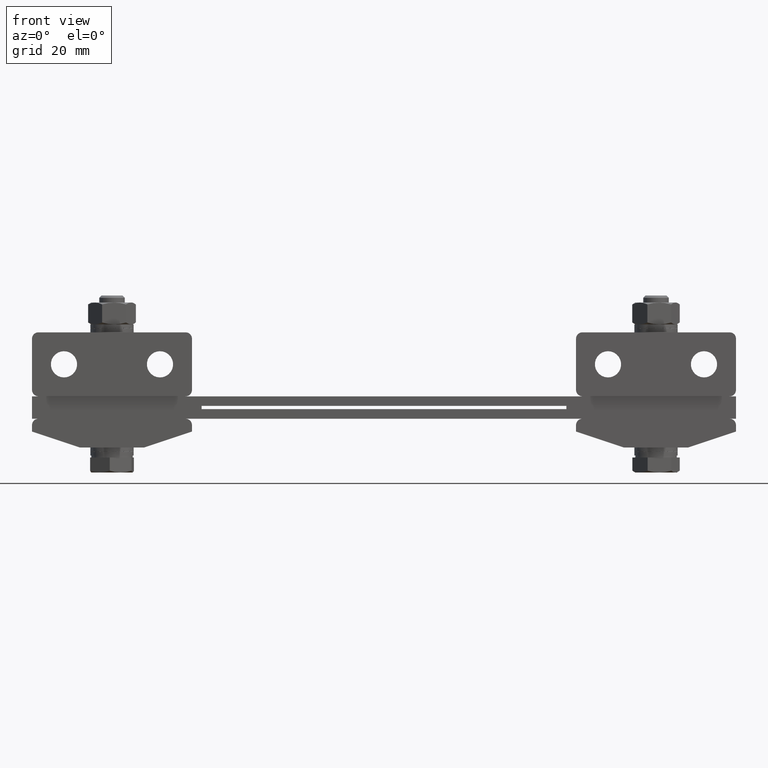
[diagram: clean part render]
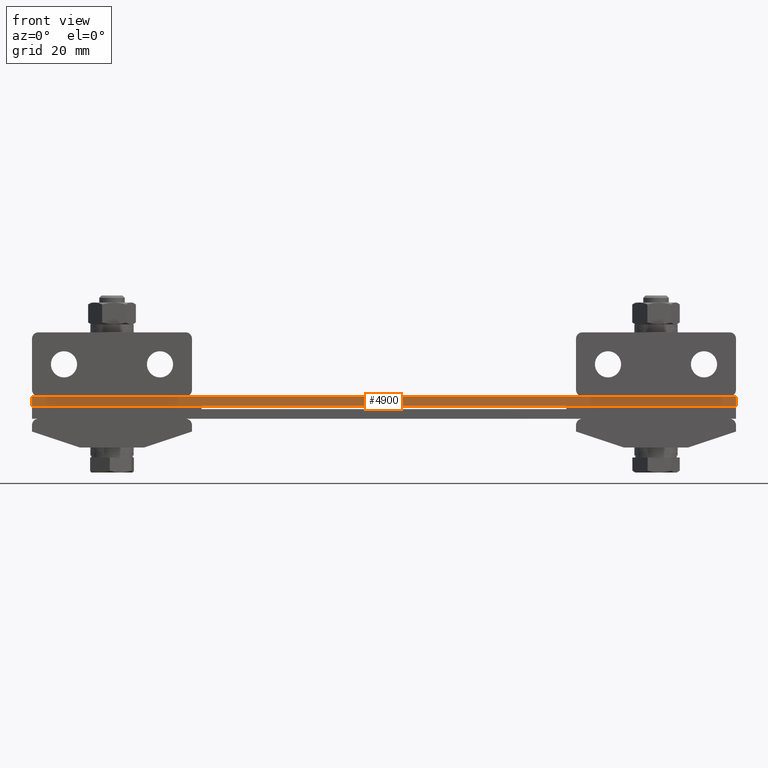
[diagram: same view with one face highlighted and labeled with its STEP entity id]
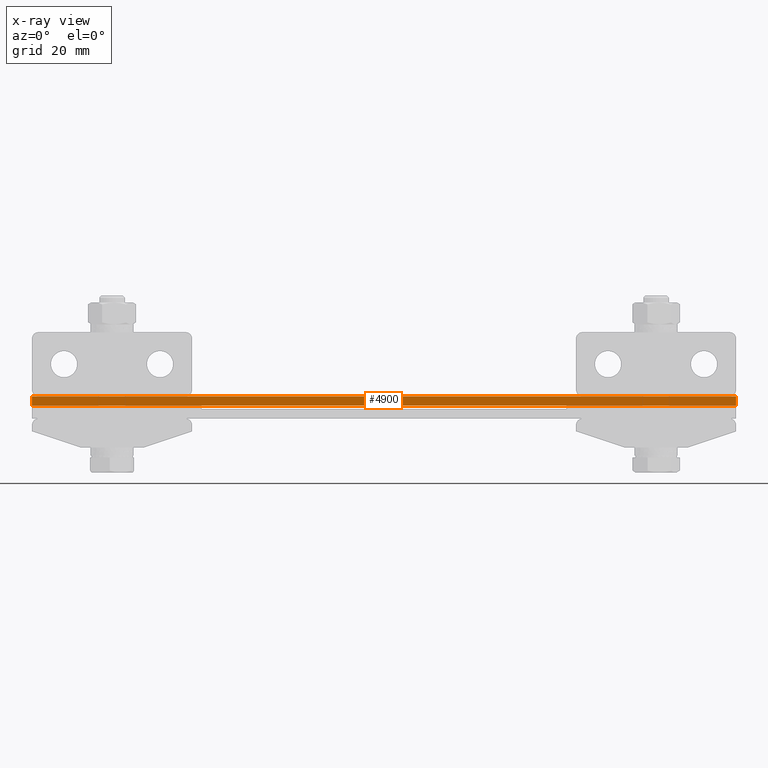
[diagram: x-ray of the same camera — body ghosted, the highlighted face saturated]
A machine part, front view. The second image highlights one B-rep face of the part: STEP entity #4900.
The next image is the same camera in x-ray: the body ghosted, the highlighted face saturated — about 0% of this face is hidden behind the body in this view.
In plain terms, the highlighted planar face has unit normal (0, 1, 0).
Its self-contained STEP definition (entity closure, byte-faithful):
#378 = CARTESIAN_POINT ( 'NONE',  ( -110.0000000000000000, -12.50000000000000000, 7.000000000000000000 ) ) ;
#1448 = VECTOR ( 'NONE', #14807, 1000.000000000000000 ) ;
#3087 = DIRECTION ( 'NONE',  ( 0.0000000000000000000, 0.0000000000000000000, -1.000000000000000000 ) ) ;
#4900 = ADVANCED_FACE ( 'NONE', ( #8577 ), #18019, .F. ) ;
#6222 = VECTOR ( 'NONE', #7387, 1000.000000000000000 ) ;
#6727 = EDGE_CURVE ( 'NONE', #7141, #18213, #15309, .T. ) ;
#7141 = VERTEX_POINT ( 'NONE', #9004 ) ;
#7336 = EDGE_CURVE ( 'NONE', #18020, #11167, #8570, .T. ) ;
#7387 = DIRECTION ( 'NONE',  ( 0.0000000000000000000, 0.0000000000000000000, -1.000000000000000000 ) ) ;
#7391 = EDGE_CURVE ( 'NONE', #11167, #18213, #13841, .T. ) ;
#8271 = CARTESIAN_POINT ( 'NONE',  ( -110.0000000000000000, -12.50000000000000000, 4.000000000000000000 ) ) ;
#8570 = LINE ( 'NONE', #14468, #10099 ) ;
#8577 = FACE_OUTER_BOUND ( 'NONE', #12637, .T. ) ;
#9004 = CARTESIAN_POINT ( 'NONE',  ( 110.0000000000000000, -12.50000000000000000, 7.000000000000000000 ) ) ;
#9971 = CARTESIAN_POINT ( 'NONE',  ( -110.0000000000000000, -12.50000000000000000, 7.000000000000000000 ) ) ;
#10099 = VECTOR ( 'NONE', #3087, 1000.000000000000000 ) ;
#10642 = CARTESIAN_POINT ( 'NONE',  ( 110.0000000000000000, -12.50000000000000000, 7.000000000000000000 ) ) ;
#11167 = VERTEX_POINT ( 'NONE', #8271 ) ;
#11368 = ORIENTED_EDGE ( 'NONE', *, *, #7391, .T. ) ;
#11576 = DIRECTION ( 'NONE',  ( 0.0000000000000000000, 1.000000000000000000, 0.0000000000000000000 ) ) ;
#11879 = ORIENTED_EDGE ( 'NONE', *, *, #13085, .F. ) ;
#12548 = CARTESIAN_POINT ( 'NONE',  ( -110.0000000000000000, -12.50000000000000000, 4.000000000000000000 ) ) ;
#12637 = EDGE_LOOP ( 'NONE', ( #11368, #19879, #11879, #19696 ) ) ;
#13085 = EDGE_CURVE ( 'NONE', #18020, #7141, #18706, .T. ) ;
#13841 = LINE ( 'NONE', #12548, #20975 ) ;
#14468 = CARTESIAN_POINT ( 'NONE',  ( -110.0000000000000000, -12.50000000000000000, 7.000000000000000000 ) ) ;
#14807 = DIRECTION ( 'NONE',  ( 1.000000000000000000, 0.0000000000000000000, 0.0000000000000000000 ) ) ;
#14882 = DIRECTION ( 'NONE',  ( 0.0000000000000000000, 0.0000000000000000000, 1.000000000000000000 ) ) ;
#15309 = LINE ( 'NONE', #10642, #6222 ) ;
#15808 = AXIS2_PLACEMENT_3D ( 'NONE', #9971, #11576, #14882 ) ;
#18019 = PLANE ( 'NONE',  #15808 ) ;
#18020 = VERTEX_POINT ( 'NONE', #20889 ) ;
#18088 = CARTESIAN_POINT ( 'NONE',  ( 110.0000000000000000, -12.50000000000000000, 4.000000000000000000 ) ) ;
#18213 = VERTEX_POINT ( 'NONE', #18088 ) ;
#18706 = LINE ( 'NONE', #378, #1448 ) ;
#19130 = DIRECTION ( 'NONE',  ( 1.000000000000000000, 0.0000000000000000000, 0.0000000000000000000 ) ) ;
#19696 = ORIENTED_EDGE ( 'NONE', *, *, #7336, .T. ) ;
#19879 = ORIENTED_EDGE ( 'NONE', *, *, #6727, .F. ) ;
#20889 = CARTESIAN_POINT ( 'NONE',  ( -110.0000000000000000, -12.50000000000000000, 7.000000000000000000 ) ) ;
#20975 = VECTOR ( 'NONE', #19130, 1000.000000000000000 ) ;